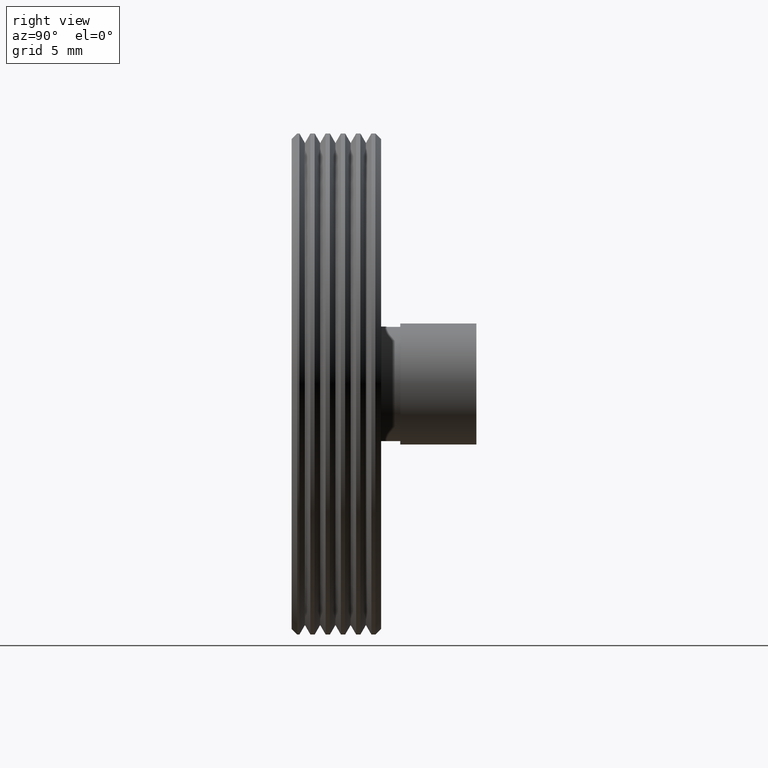
[diagram: clean part render]
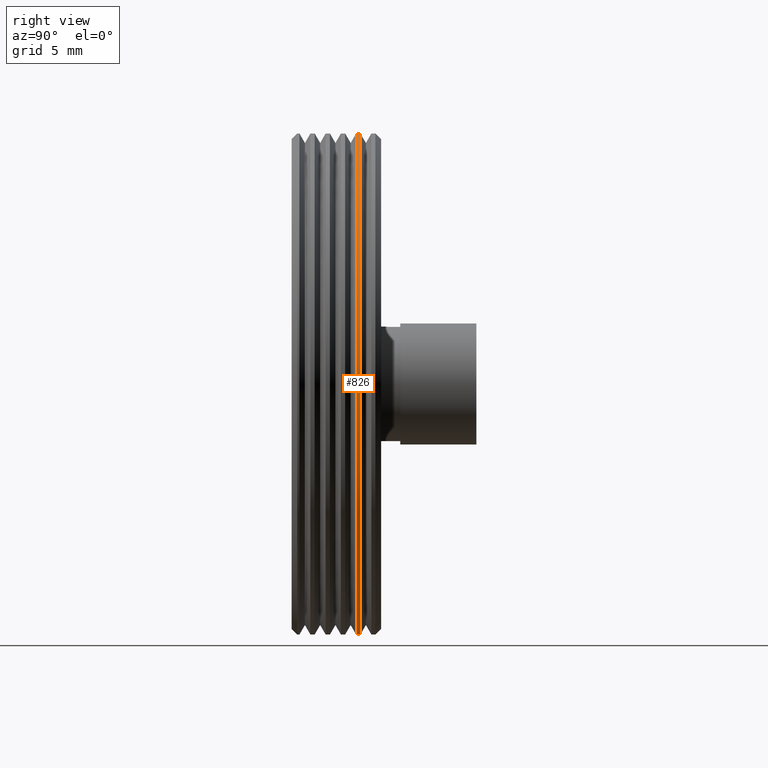
[diagram: same view with one face highlighted and labeled with its STEP entity id]
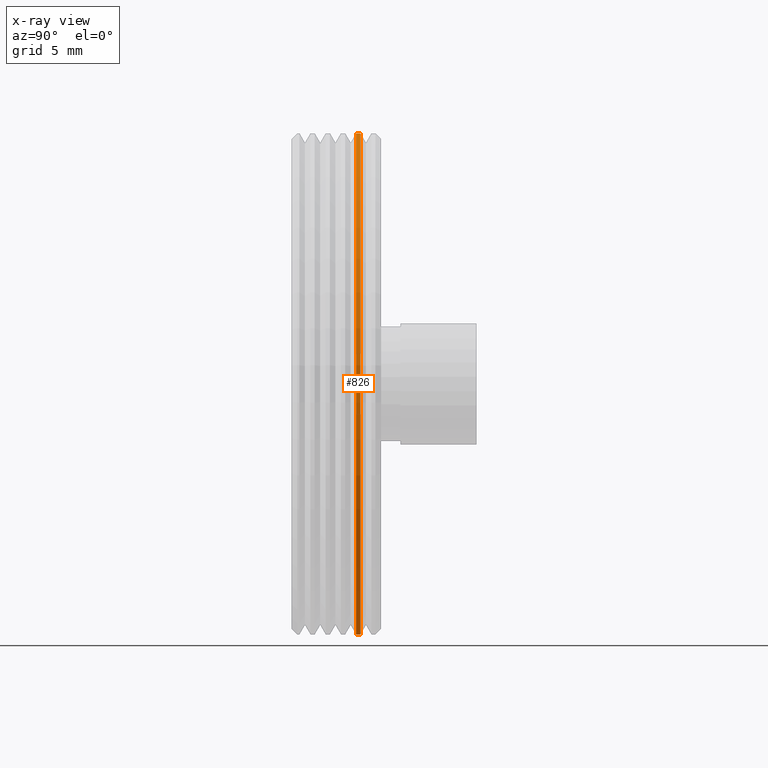
[diagram: x-ray of the same camera — body ghosted, the highlighted face saturated]
A machine part, right view. The second image highlights one B-rep face of the part: STEP entity #826.
The next image is the same camera in x-ray: the body ghosted, the highlighted face saturated — about 0% of this face is hidden behind the body in this view.
In plain terms, the highlighted cylindrical surface (partial cylindrical patch) has radius 13.15 mm, axis along (-0, 1, -0).
Its self-contained STEP definition (entity closure, byte-faithful):
#44 = DIRECTION ( 'NONE',  ( 0.000000000000000000, 0.000000000000000000, 1.000000000000000000 ) ) ;
#60 = EDGE_CURVE ( 'NONE', #802, #1221, #130, .T. ) ;
#103 = FACE_OUTER_BOUND ( 'NONE', #452, .T. ) ;
#117 = CIRCLE ( 'NONE', #922, 13.15000000000000568 ) ;
#119 = ORIENTED_EDGE ( 'NONE', *, *, #184, .T. ) ;
#130 = CIRCLE ( 'NONE', #1038, 13.15000000000000568 ) ;
#131 = ORIENTED_EDGE ( 'NONE', *, *, #60, .F. ) ;
#151 = AXIS2_PLACEMENT_3D ( 'NONE', #386, #1137, #276 ) ;
#184 = EDGE_CURVE ( 'NONE', #931, #1221, #294, .T. ) ;
#203 = CARTESIAN_POINT ( 'NONE',  ( 0.000000000000000000, 3.611324865405185047, 0.000000000000000000 ) ) ;
#216 = DIRECTION ( 'NONE',  ( 0.000000000000000000, 0.000000000000000000, -1.000000000000000000 ) ) ;
#241 = CARTESIAN_POINT ( 'NONE',  ( 1.610410540878770117E-15, 3.611324865405185047, -13.15000000000000568 ) ) ;
#276 = DIRECTION ( 'NONE',  ( 0.000000000000000000, 0.000000000000000000, 1.000000000000000000 ) ) ;
#294 = LINE ( 'NONE', #400, #1182 ) ;
#312 = LINE ( 'NONE', #693, #432 ) ;
#386 = CARTESIAN_POINT ( 'NONE',  ( 0.000000000000000000, 41.06170623995065938, 0.000000000000000000 ) ) ;
#397 = VERTEX_POINT ( 'NONE', #625 ) ;
#400 = CARTESIAN_POINT ( 'NONE',  ( 1.610410540878770117E-15, 41.06170623995065938, -13.15000000000000568 ) ) ;
#432 = VECTOR ( 'NONE', #1088, 1000.000000000000000 ) ;
#452 = EDGE_LOOP ( 'NONE', ( #1219, #119, #131, #909 ) ) ;
#464 = CARTESIAN_POINT ( 'NONE',  ( 1.610410540878770117E-15, 3.388675134594815841, -13.15000000000000568 ) ) ;
#483 = DIRECTION ( 'NONE',  ( -0.000000000000000000, 1.000000000000000000, -0.000000000000000000 ) ) ;
#519 = CARTESIAN_POINT ( 'NONE',  ( 0.000000000000000000, 3.388675134594815841, 0.000000000000000000 ) ) ;
#625 = CARTESIAN_POINT ( 'NONE',  ( 0.000000000000000000, 3.388675134594815841, 13.15000000000000568 ) ) ;
#693 = CARTESIAN_POINT ( 'NONE',  ( 0.000000000000000000, 41.06170623995065938, 13.15000000000000568 ) ) ;
#742 = CYLINDRICAL_SURFACE ( 'NONE', #151, 13.15000000000000568 ) ;
#785 = EDGE_CURVE ( 'NONE', #397, #802, #312, .T. ) ;
#802 = VERTEX_POINT ( 'NONE', #1159 ) ;
#826 = ADVANCED_FACE ( 'NONE', ( #103 ), #742, .T. ) ;
#909 = ORIENTED_EDGE ( 'NONE', *, *, #785, .F. ) ;
#910 = DIRECTION ( 'NONE',  ( 0.000000000000000000, -1.000000000000000000, 0.000000000000000000 ) ) ;
#922 = AXIS2_PLACEMENT_3D ( 'NONE', #519, #910, #44 ) ;
#931 = VERTEX_POINT ( 'NONE', #464 ) ;
#1038 = AXIS2_PLACEMENT_3D ( 'NONE', #203, #1179, #216 ) ;
#1088 = DIRECTION ( 'NONE',  ( -0.000000000000000000, 1.000000000000000000, -0.000000000000000000 ) ) ;
#1137 = DIRECTION ( 'NONE',  ( -0.000000000000000000, 1.000000000000000000, -0.000000000000000000 ) ) ;
#1159 = CARTESIAN_POINT ( 'NONE',  ( 0.000000000000000000, 3.611324865405185047, 13.15000000000000568 ) ) ;
#1179 = DIRECTION ( 'NONE',  ( -0.000000000000000000, 1.000000000000000000, -0.000000000000000000 ) ) ;
#1182 = VECTOR ( 'NONE', #483, 1000.000000000000000 ) ;
#1219 = ORIENTED_EDGE ( 'NONE', *, *, #1224, .F. ) ;
#1221 = VERTEX_POINT ( 'NONE', #241 ) ;
#1224 = EDGE_CURVE ( 'NONE', #931, #397, #117, .T. ) ;